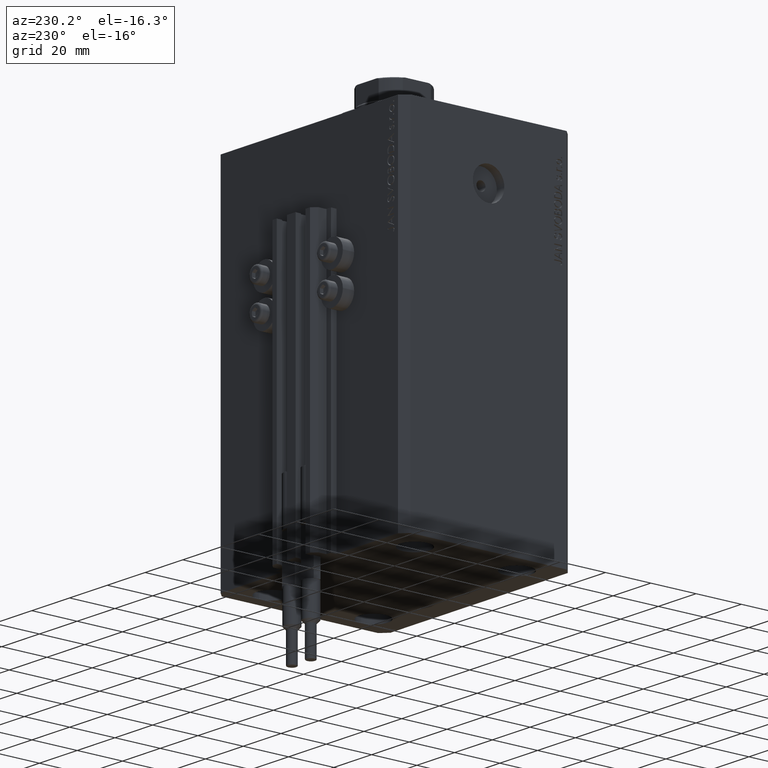
[diagram: clean part render]
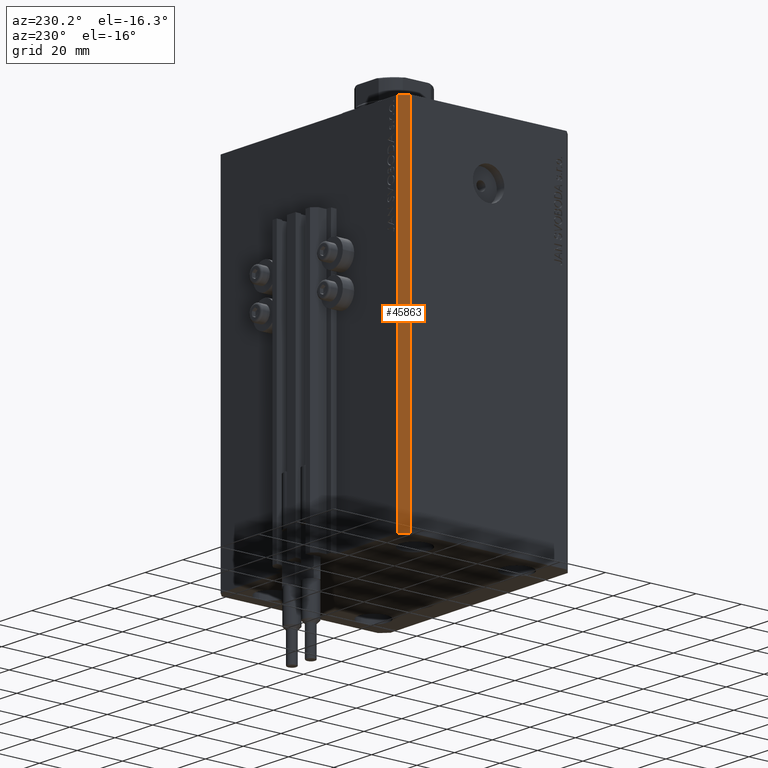
[diagram: same view with one face highlighted and labeled with its STEP entity id]
A machine part, auxiliary view. The second image highlights one B-rep face of the part: STEP entity #45863.
In plain terms, the highlighted planar face has unit normal (-0.7071, 0.7071, 0).
Its self-contained STEP definition (entity closure, byte-faithful):
#1996 = VECTOR ( 'NONE', #4060, 1000.000000000000000 ) ;
#2433 = EDGE_CURVE ( 'NONE', #27610, #13315, #44876, .T. ) ;
#4060 = DIRECTION ( 'NONE',  ( 0.000000000000000000, 0.000000000000000000, 1.000000000000000000 ) ) ;
#4369 = EDGE_CURVE ( 'NONE', #27610, #22722, #33900, .T. ) ;
#6315 = CARTESIAN_POINT ( 'NONE',  ( -47.00000000000001421, 37.50000000000000000, -155.0000000000000000 ) ) ;
#6336 = DIRECTION ( 'NONE',  ( 0.000000000000000000, 0.000000000000000000, 1.000000000000000000 ) ) ;
#7914 = ORIENTED_EDGE ( 'NONE', *, *, #36872, .T. ) ;
#9320 = VECTOR ( 'NONE', #6336, 1000.000000000000000 ) ;
#13117 = DIRECTION ( 'NONE',  ( -0.7071067811865483499, -0.7071067811865467956, 0.000000000000000000 ) ) ;
#13315 = VERTEX_POINT ( 'NONE', #44371 ) ;
#14396 = CARTESIAN_POINT ( 'NONE',  ( -47.00000000000001421, 37.50000000000000000, 0.000000000000000000 ) ) ;
#15710 = CARTESIAN_POINT ( 'NONE',  ( -47.00000000000001421, 37.50000000000000000, -155.0000000000000000 ) ) ;
#19214 = LINE ( 'NONE', #22361, #33155 ) ;
#19338 = CARTESIAN_POINT ( 'NONE',  ( -47.00000000000001421, 37.50000000000000000, -155.0000000000000000 ) ) ;
#20872 = DIRECTION ( 'NONE',  ( -0.7071067811865467956, 0.7071067811865483499, 0.000000000000000000 ) ) ;
#22067 = VECTOR ( 'NONE', #22495, 1000.000000000000000 ) ;
#22361 = CARTESIAN_POINT ( 'NONE',  ( -47.00000000000001421, 37.50000000000000000, 0.000000000000000000 ) ) ;
#22495 = DIRECTION ( 'NONE',  ( -0.7071067811865483499, -0.7071067811865466846, 0.000000000000000000 ) ) ;
#22722 = VERTEX_POINT ( 'NONE', #14396 ) ;
#23469 = ORIENTED_EDGE ( 'NONE', *, *, #4369, .F. ) ;
#23681 = EDGE_CURVE ( 'NONE', #22722, #39885, #19214, .T. ) ;
#25706 = CARTESIAN_POINT ( 'NONE',  ( -50.00000000000001421, 34.50000000000000000, 0.000000000000000000 ) ) ;
#26654 = CARTESIAN_POINT ( 'NONE',  ( -47.00000000000001421, 37.50000000000000000, -155.0000000000000000 ) ) ;
#27610 = VERTEX_POINT ( 'NONE', #26654 ) ;
#28180 = LINE ( 'NONE', #35474, #9320 ) ;
#29745 = ORIENTED_EDGE ( 'NONE', *, *, #23681, .F. ) ;
#33155 = VECTOR ( 'NONE', #34033, 1000.000000000000000 ) ;
#33455 = AXIS2_PLACEMENT_3D ( 'NONE', #6315, #20872, #13117 ) ;
#33900 = LINE ( 'NONE', #19338, #1996 ) ;
#34033 = DIRECTION ( 'NONE',  ( -0.7071067811865483499, -0.7071067811865466846, 0.000000000000000000 ) ) ;
#34430 = EDGE_LOOP ( 'NONE', ( #29745, #23469, #38017, #7914 ) ) ;
#34983 = FACE_OUTER_BOUND ( 'NONE', #34430, .T. ) ;
#35474 = CARTESIAN_POINT ( 'NONE',  ( -50.00000000000001421, 34.50000000000000000, -155.0000000000000000 ) ) ;
#36872 = EDGE_CURVE ( 'NONE', #13315, #39885, #28180, .T. ) ;
#38017 = ORIENTED_EDGE ( 'NONE', *, *, #2433, .T. ) ;
#39097 = PLANE ( 'NONE',  #33455 ) ;
#39885 = VERTEX_POINT ( 'NONE', #25706 ) ;
#44371 = CARTESIAN_POINT ( 'NONE',  ( -50.00000000000001421, 34.50000000000000000, -155.0000000000000000 ) ) ;
#44876 = LINE ( 'NONE', #15710, #22067 ) ;
#45863 = ADVANCED_FACE ( 'NONE', ( #34983 ), #39097, .T. ) ;